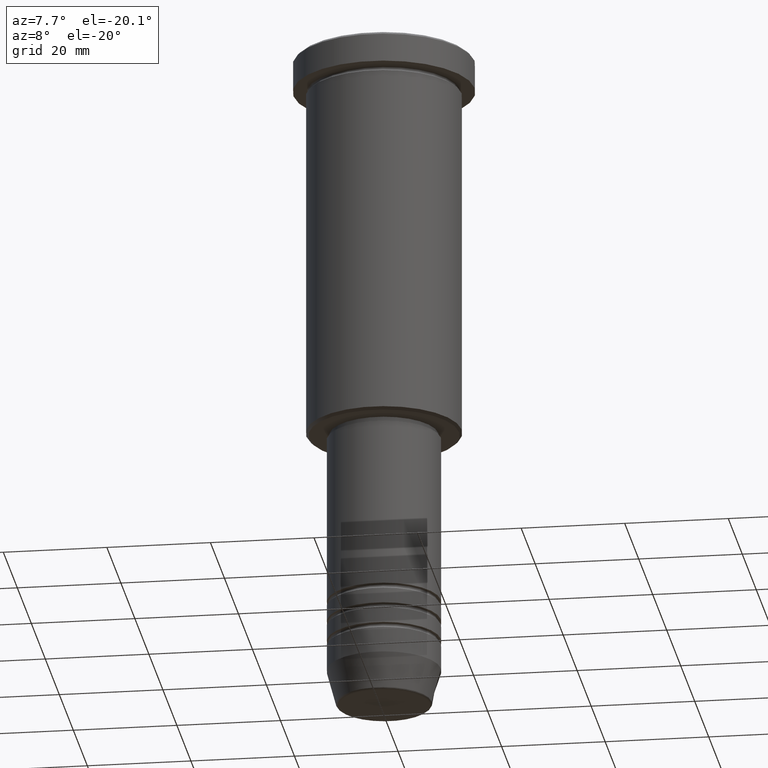
[diagram: clean part render]
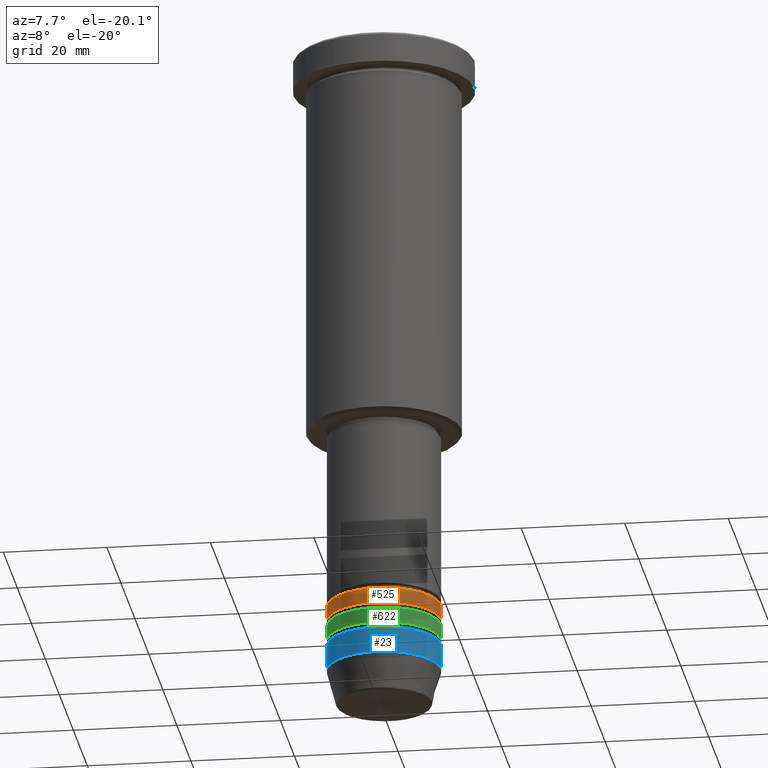
[diagram: same view with three faces highlighted in distinct colors, each labeled with its STEP entity id]
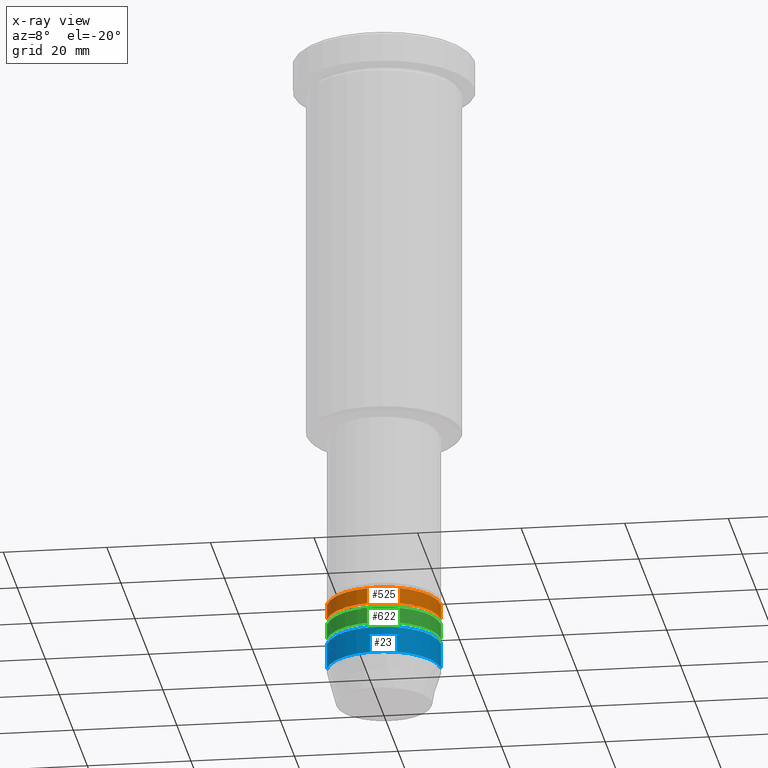
[diagram: x-ray of the same camera — body ghosted, the three highlighted faces saturated]
A machine part, auxiliary view with three faces highlighted in distinct colors.
The next image is the same camera in x-ray (body ghosted, the three faces saturated) — at least one of them is partly hidden behind the body in this view.
Their STEP definitions:

[orange] entity #525 — the highlighted cylindrical surface (partial cylindrical patch) has radius 11 mm, axis along (-0, -0, 1).
#21 = FACE_OUTER_BOUND ( 'NONE', #456, .T. ) ;
#54 = ORIENTED_EDGE ( 'NONE', *, *, #666, .T. ) ;
#82 = DIRECTION ( 'NONE',  ( -0.000000000000000000, -0.000000000000000000, 1.000000000000000000 ) ) ;
#114 = EDGE_CURVE ( 'NONE', #1165, #1154, #1164, .T. ) ;
#126 = CIRCLE ( 'NONE', #968, 11.00000000000000355 ) ;
#132 = CARTESIAN_POINT ( 'NONE',  ( 0.000000000000000000, 0.000000000000000000, -110.9999999999998863 ) ) ;
#158 = ORIENTED_EDGE ( 'NONE', *, *, #943, .F. ) ;
#162 = CARTESIAN_POINT ( 'NONE',  ( 11.00000000000000355, 0.000000000000000000, -113.9999999999999005 ) ) ;
#184 = DIRECTION ( 'NONE',  ( -0.000000000000000000, -0.000000000000000000, 1.000000000000000000 ) ) ;
#316 = EDGE_CURVE ( 'NONE', #715, #894, #405, .T. ) ;
#331 = DIRECTION ( 'NONE',  ( -0.000000000000000000, -0.000000000000000000, 1.000000000000000000 ) ) ;
#337 = AXIS2_PLACEMENT_3D ( 'NONE', #559, #184, #1089 ) ;
#350 = ORIENTED_EDGE ( 'NONE', *, *, #114, .T. ) ;
#405 = LINE ( 'NONE', #778, #1001 ) ;
#431 = CARTESIAN_POINT ( 'NONE',  ( 11.00000000000000178, 0.000000000000000000, 0.000000000000000000 ) ) ;
#456 = EDGE_LOOP ( 'NONE', ( #694, #54, #350, #158 ) ) ;
#512 = AXIS2_PLACEMENT_3D ( 'NONE', #132, #1041, #948 ) ;
#525 = ADVANCED_FACE ( 'NONE', ( #21 ), #817, .T. ) ;
#559 = CARTESIAN_POINT ( 'NONE',  ( 0.000000000000000000, 0.000000000000000000, 0.000000000000000000 ) ) ;
#586 = DIRECTION ( 'NONE',  ( -0.000000000000000000, -0.000000000000000000, 1.000000000000000000 ) ) ;
#637 = CARTESIAN_POINT ( 'NONE',  ( 0.000000000000000000, 0.000000000000000000, -113.9999999999999005 ) ) ;
#666 = EDGE_CURVE ( 'NONE', #715, #1165, #126, .T. ) ;
#694 = ORIENTED_EDGE ( 'NONE', *, *, #316, .F. ) ;
#715 = VERTEX_POINT ( 'NONE', #913 ) ;
#778 = CARTESIAN_POINT ( 'NONE',  ( -11.00000000000000178, 1.347111479062088602E-15, 0.000000000000000000 ) ) ;
#817 = CYLINDRICAL_SURFACE ( 'NONE', #337, 11.00000000000000178 ) ;
#859 = CARTESIAN_POINT ( 'NONE',  ( -11.00000000000000000, 1.347111479062088602E-15, -110.9999999999998863 ) ) ;
#877 = CARTESIAN_POINT ( 'NONE',  ( 11.00000000000000000, 0.000000000000000000, -110.9999999999998863 ) ) ;
#894 = VERTEX_POINT ( 'NONE', #859 ) ;
#913 = CARTESIAN_POINT ( 'NONE',  ( -11.00000000000000355, 1.347111479062088996E-15, -113.9999999999999005 ) ) ;
#943 = EDGE_CURVE ( 'NONE', #894, #1154, #1133, .T. ) ;
#948 = DIRECTION ( 'NONE',  ( 1.000000000000000000, 0.000000000000000000, 0.000000000000000000 ) ) ;
#963 = VECTOR ( 'NONE', #331, 1000.000000000000000 ) ;
#968 = AXIS2_PLACEMENT_3D ( 'NONE', #637, #82, #1150 ) ;
#1001 = VECTOR ( 'NONE', #586, 1000.000000000000000 ) ;
#1041 = DIRECTION ( 'NONE',  ( -0.000000000000000000, -0.000000000000000000, 1.000000000000000000 ) ) ;
#1089 = DIRECTION ( 'NONE',  ( 1.000000000000000000, 0.000000000000000000, 0.000000000000000000 ) ) ;
#1133 = CIRCLE ( 'NONE', #512, 11.00000000000000000 ) ;
#1150 = DIRECTION ( 'NONE',  ( 1.000000000000000000, 0.000000000000000000, 0.000000000000000000 ) ) ;
#1154 = VERTEX_POINT ( 'NONE', #877 ) ;
#1164 = LINE ( 'NONE', #431, #963 ) ;
#1165 = VERTEX_POINT ( 'NONE', #162 ) ;

[blue] entity #23 — the highlighted cylindrical surface (partial cylindrical patch) has radius 11 mm, axis along (-0, -0, 1).
#23 = ADVANCED_FACE ( 'NONE', ( #540 ), #152, .T. ) ;
#41 = CARTESIAN_POINT ( 'NONE',  ( 11.00000000000000000, 0.000000000000000000, 0.000000000000000000 ) ) ;
#44 = DIRECTION ( 'NONE',  ( 1.000000000000000000, 0.000000000000000000, 0.000000000000000000 ) ) ;
#46 = EDGE_CURVE ( 'NONE', #241, #918, #61, .T. ) ;
#52 = DIRECTION ( 'NONE',  ( -0.000000000000000000, -0.000000000000000000, 1.000000000000000000 ) ) ;
#61 = CIRCLE ( 'NONE', #764, 11.00000000000000000 ) ;
#94 = CARTESIAN_POINT ( 'NONE',  ( 0.000000000000000000, 0.000000000000000000, -124.0000000000000000 ) ) ;
#95 = AXIS2_PLACEMENT_3D ( 'NONE', #94, #1120, #44 ) ;
#124 = EDGE_LOOP ( 'NONE', ( #243, #960, #810, #225 ) ) ;
#152 = CYLINDRICAL_SURFACE ( 'NONE', #745, 11.00000000000000000 ) ;
#186 = VECTOR ( 'NONE', #600, 1000.000000000000000 ) ;
#225 = ORIENTED_EDGE ( 'NONE', *, *, #46, .F. ) ;
#233 = CARTESIAN_POINT ( 'NONE',  ( -11.00000000000000000, 1.347111479062088405E-15, 0.000000000000000000 ) ) ;
#241 = VERTEX_POINT ( 'NONE', #839 ) ;
#243 = ORIENTED_EDGE ( 'NONE', *, *, #393, .F. ) ;
#250 = DIRECTION ( 'NONE',  ( -0.000000000000000000, -0.000000000000000000, 1.000000000000000000 ) ) ;
#370 = CARTESIAN_POINT ( 'NONE',  ( 11.00000000000000000, 0.000000000000000000, -124.0000000000000000 ) ) ;
#393 = EDGE_CURVE ( 'NONE', #1145, #241, #864, .T. ) ;
#402 = DIRECTION ( 'NONE',  ( -0.000000000000000000, -0.000000000000000000, 1.000000000000000000 ) ) ;
#449 = DIRECTION ( 'NONE',  ( 1.000000000000000000, 0.000000000000000000, 0.000000000000000000 ) ) ;
#491 = DIRECTION ( 'NONE',  ( 1.000000000000000000, 0.000000000000000000, 0.000000000000000000 ) ) ;
#522 = VERTEX_POINT ( 'NONE', #370 ) ;
#540 = FACE_OUTER_BOUND ( 'NONE', #124, .T. ) ;
#568 = VECTOR ( 'NONE', #402, 1000.000000000000000 ) ;
#600 = DIRECTION ( 'NONE',  ( -0.000000000000000000, -0.000000000000000000, 1.000000000000000000 ) ) ;
#709 = CARTESIAN_POINT ( 'NONE',  ( 0.000000000000000000, 0.000000000000000000, 0.000000000000000000 ) ) ;
#745 = AXIS2_PLACEMENT_3D ( 'NONE', #709, #250, #449 ) ;
#764 = AXIS2_PLACEMENT_3D ( 'NONE', #956, #52, #491 ) ;
#810 = ORIENTED_EDGE ( 'NONE', *, *, #978, .T. ) ;
#839 = CARTESIAN_POINT ( 'NONE',  ( -11.00000000000000000, 1.347111479062088405E-15, -119.0000000000000000 ) ) ;
#851 = EDGE_CURVE ( 'NONE', #1145, #522, #1040, .T. ) ;
#853 = LINE ( 'NONE', #41, #568 ) ;
#864 = LINE ( 'NONE', #233, #186 ) ;
#918 = VERTEX_POINT ( 'NONE', #938 ) ;
#938 = CARTESIAN_POINT ( 'NONE',  ( 11.00000000000000000, 0.000000000000000000, -119.0000000000000000 ) ) ;
#956 = CARTESIAN_POINT ( 'NONE',  ( 0.000000000000000000, 0.000000000000000000, -119.0000000000000000 ) ) ;
#958 = CARTESIAN_POINT ( 'NONE',  ( -11.00000000000000000, 1.347111479062088405E-15, -124.0000000000000000 ) ) ;
#960 = ORIENTED_EDGE ( 'NONE', *, *, #851, .T. ) ;
#978 = EDGE_CURVE ( 'NONE', #522, #918, #853, .T. ) ;
#1040 = CIRCLE ( 'NONE', #95, 11.00000000000000000 ) ;
#1120 = DIRECTION ( 'NONE',  ( -0.000000000000000000, -0.000000000000000000, 1.000000000000000000 ) ) ;
#1145 = VERTEX_POINT ( 'NONE', #958 ) ;

[green] entity #622 — the highlighted cylindrical surface (partial cylindrical patch) has radius 11 mm, axis along (-0, -0, 1).
#11 = CARTESIAN_POINT ( 'NONE',  ( -11.00000000000000000, 1.347111479062088405E-15, -114.9999999999998863 ) ) ;
#88 = DIRECTION ( 'NONE',  ( 1.000000000000000000, 0.000000000000000000, 0.000000000000000000 ) ) ;
#98 = DIRECTION ( 'NONE',  ( 1.000000000000000000, 0.000000000000000000, 0.000000000000000000 ) ) ;
#144 = VERTEX_POINT ( 'NONE', #11 ) ;
#168 = CYLINDRICAL_SURFACE ( 'NONE', #532, 11.00000000000000000 ) ;
#185 = LINE ( 'NONE', #462, #969 ) ;
#187 = EDGE_CURVE ( 'NONE', #1026, #1042, #430, .T. ) ;
#272 = DIRECTION ( 'NONE',  ( -0.000000000000000000, -0.000000000000000000, 1.000000000000000000 ) ) ;
#275 = CARTESIAN_POINT ( 'NONE',  ( 0.000000000000000000, 0.000000000000000000, -117.9999999999998863 ) ) ;
#288 = EDGE_CURVE ( 'NONE', #1026, #144, #759, .T. ) ;
#309 = CARTESIAN_POINT ( 'NONE',  ( -11.00000000000000000, 1.347111479062088405E-15, 0.000000000000000000 ) ) ;
#345 = DIRECTION ( 'NONE',  ( -0.000000000000000000, -0.000000000000000000, 1.000000000000000000 ) ) ;
#352 = DIRECTION ( 'NONE',  ( -0.000000000000000000, -0.000000000000000000, 1.000000000000000000 ) ) ;
#353 = ORIENTED_EDGE ( 'NONE', *, *, #288, .F. ) ;
#358 = AXIS2_PLACEMENT_3D ( 'NONE', #275, #825, #98 ) ;
#430 = CIRCLE ( 'NONE', #358, 11.00000000000000000 ) ;
#462 = CARTESIAN_POINT ( 'NONE',  ( 11.00000000000000000, 0.000000000000000000, 0.000000000000000000 ) ) ;
#485 = VERTEX_POINT ( 'NONE', #529 ) ;
#505 = VECTOR ( 'NONE', #574, 1000.000000000000000 ) ;
#529 = CARTESIAN_POINT ( 'NONE',  ( 11.00000000000000000, 0.000000000000000000, -114.9999999999998863 ) ) ;
#530 = CARTESIAN_POINT ( 'NONE',  ( 0.000000000000000000, 0.000000000000000000, -114.9999999999998863 ) ) ;
#532 = AXIS2_PLACEMENT_3D ( 'NONE', #975, #345, #732 ) ;
#543 = CARTESIAN_POINT ( 'NONE',  ( -11.00000000000000000, 1.347111479062088405E-15, -117.9999999999998863 ) ) ;
#574 = DIRECTION ( 'NONE',  ( -0.000000000000000000, -0.000000000000000000, 1.000000000000000000 ) ) ;
#604 = ORIENTED_EDGE ( 'NONE', *, *, #771, .T. ) ;
#622 = ADVANCED_FACE ( 'NONE', ( #727 ), #168, .T. ) ;
#648 = EDGE_CURVE ( 'NONE', #144, #485, #819, .T. ) ;
#727 = FACE_OUTER_BOUND ( 'NONE', #847, .T. ) ;
#732 = DIRECTION ( 'NONE',  ( 1.000000000000000000, 0.000000000000000000, 0.000000000000000000 ) ) ;
#759 = LINE ( 'NONE', #309, #505 ) ;
#771 = EDGE_CURVE ( 'NONE', #1042, #485, #185, .T. ) ;
#819 = CIRCLE ( 'NONE', #1036, 11.00000000000000000 ) ;
#825 = DIRECTION ( 'NONE',  ( -0.000000000000000000, -0.000000000000000000, 1.000000000000000000 ) ) ;
#838 = CARTESIAN_POINT ( 'NONE',  ( 11.00000000000000000, 0.000000000000000000, -117.9999999999998863 ) ) ;
#847 = EDGE_LOOP ( 'NONE', ( #353, #1163, #604, #897 ) ) ;
#897 = ORIENTED_EDGE ( 'NONE', *, *, #648, .F. ) ;
#969 = VECTOR ( 'NONE', #272, 1000.000000000000000 ) ;
#975 = CARTESIAN_POINT ( 'NONE',  ( 0.000000000000000000, 0.000000000000000000, 0.000000000000000000 ) ) ;
#1026 = VERTEX_POINT ( 'NONE', #543 ) ;
#1036 = AXIS2_PLACEMENT_3D ( 'NONE', #530, #352, #88 ) ;
#1042 = VERTEX_POINT ( 'NONE', #838 ) ;
#1163 = ORIENTED_EDGE ( 'NONE', *, *, #187, .T. ) ;